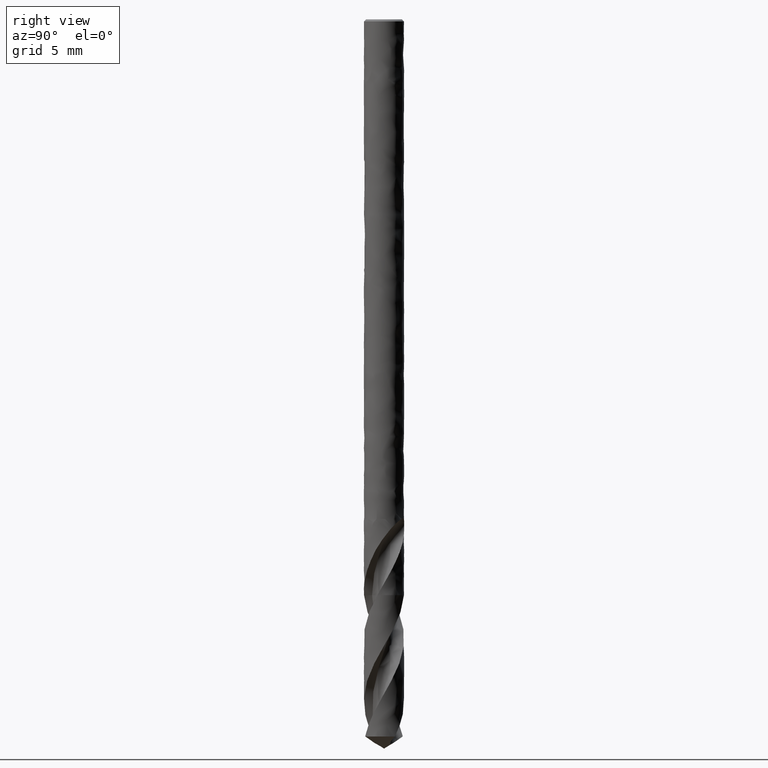
[diagram: clean part render]
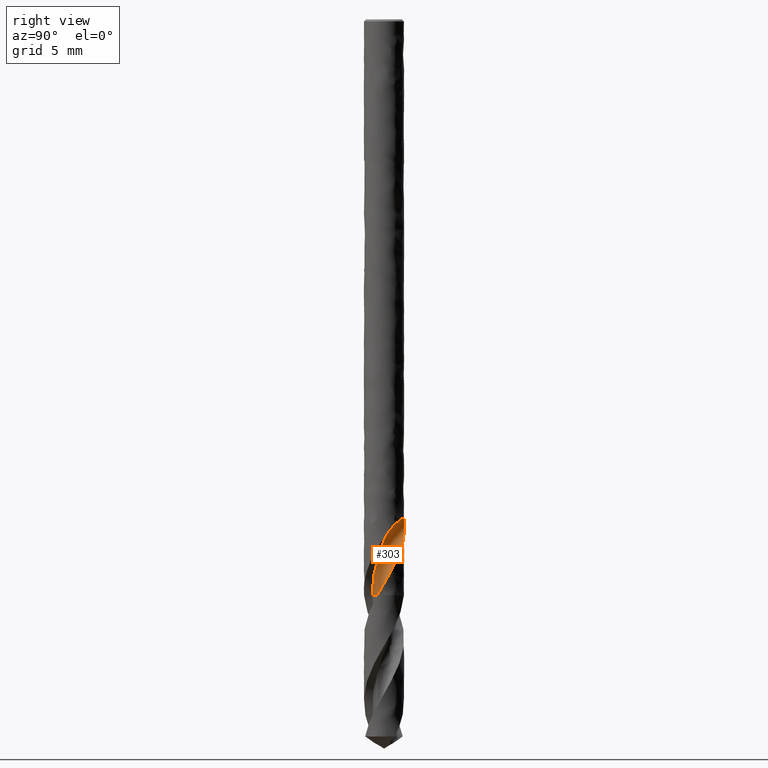
[diagram: same view with one face highlighted and labeled with its STEP entity id]
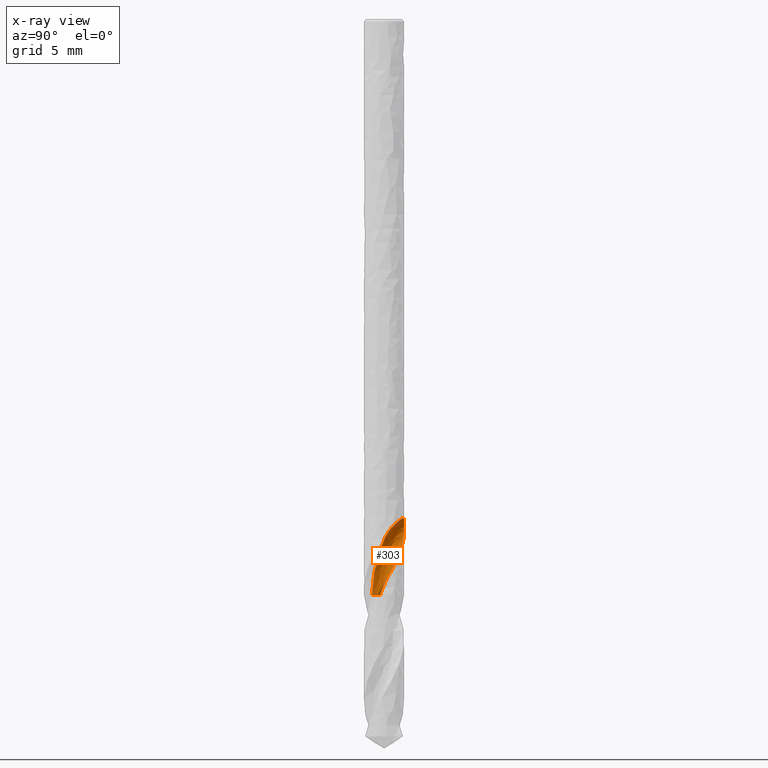
[diagram: x-ray of the same camera — body ghosted, the highlighted face saturated]
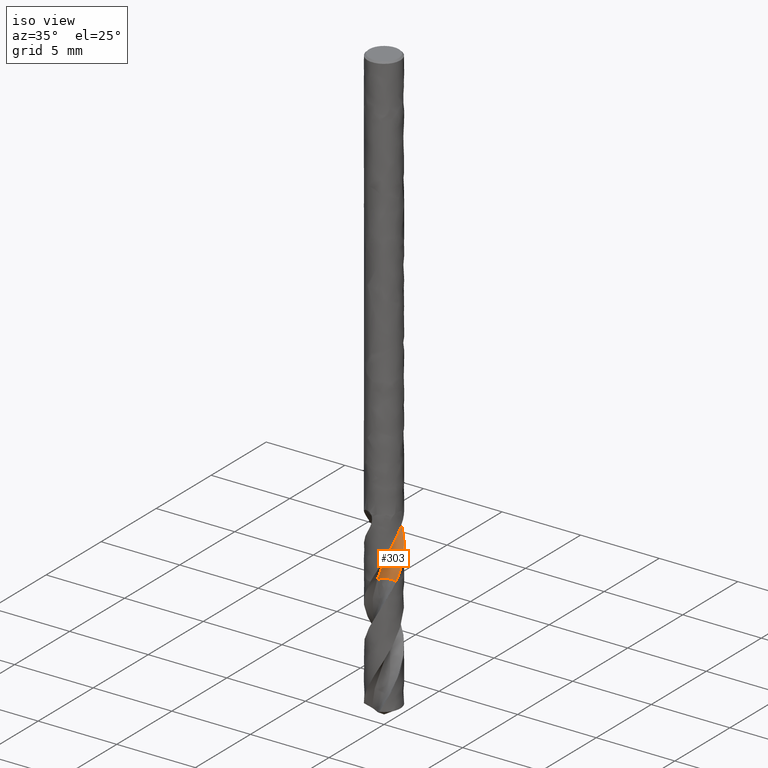
[diagram: same view with one face highlighted and labeled with its STEP entity id]
A machine part, right view. The second image highlights one B-rep face of the part: STEP entity #303.
The next image is the same camera in x-ray: the body ghosted, the highlighted face saturated — about 0% of this face is hidden behind the body in this view.
A second angle (iso view) of the same face is appended — the face is thin or edge-on in the first view.
In plain terms, the highlighted face is a freeform B-spline surface patch.
Its self-contained STEP definition (entity closure, byte-faithful):
#131 = VERTEX_POINT('', #132);
#132 = CARTESIAN_POINT('', (0.00812829736750632, -0.62197046309725, -30.));
#138 = EDGE_CURVE('', #131, #139, #141, .T.);
#139 = VERTEX_POINT('', #140);
#140 = CARTESIAN_POINT('', (1.00877154541879, 0.291341670815203, -26.6222620833544));
#141 = B_SPLINE_CURVE_WITH_KNOTS('', 3, (#142, #143, #144, #145, #146, #147, #148, #149, #150, #151, #152, #153, #154, #155, #156, #157, #158, #159, #160, #161, #162), .UNSPECIFIED., .F., .U., (4, 1, 1, 1, 1, 1, 1, 1, 1, 1, 1, 1, 1, 1, 1, 1, 1, 1, 4), (8.05, 8.16290322580645, 8.35725806451613, 8.55161290322581, 8.74596774193548, 8.94032258064516, 9.13467741935484, 9.32903225806452, 9.52338709677419, 9.71774193548387, 9.91209677419355, 10.1064516129032, 10.3008064516129, 10.4951612903226, 10.6895161290323, 10.8838709677419, 11.0782258064516, 11.2725806451613, 11.4277379166456), .UNSPECIFIED.);
#142 = CARTESIAN_POINT('', (0.00812829736750632, -0.62197046309725, -30.));
#143 = CARTESIAN_POINT('', (0.020875065677654, -0.622065054686382, -29.9623655913978));
#144 = CARTESIAN_POINT('', (0.0555943799361764, -0.621268053475307, -29.8599462365591));
#145 = CARTESIAN_POINT('', (0.112126050277125, -0.615270454144929, -29.6927419354839));
#146 = CARTESIAN_POINT('', (0.17690152979432, -0.601435017758764, -29.4983870967742));
#147 = CARTESIAN_POINT('', (0.240036038661191, -0.580855477938758, -29.3040322580645));
#148 = CARTESIAN_POINT('', (0.300819862148015, -0.553707964721038, -29.1096774193548));
#149 = CARTESIAN_POINT('', (0.358632258828611, -0.520299874706273, -28.9153225806452));
#150 = CARTESIAN_POINT('', (0.41262703865387, -0.480782048448571, -28.7209677419355));
#151 = CARTESIAN_POINT('', (0.462939638260712, -0.436211514525201, -28.5266129032258));
#152 = CARTESIAN_POINT('', (0.505887618218341, -0.384262338106694, -28.3322580645161));
#153 = CARTESIAN_POINT('', (0.539218741084692, -0.325882511425761, -28.1379032258065));
#154 = CARTESIAN_POINT('', (0.562175869022533, -0.262812607665207, -27.9435483870968));
#155 = CARTESIAN_POINT('', (0.573900631636519, -0.198034143079017, -27.7491935483871));
#156 = CARTESIAN_POINT('', (0.607234457413378, -0.141046432939312, -27.5548387096774));
#157 = CARTESIAN_POINT('', (0.658669150430675, -0.0817846011829336, -27.3604838709677));
#158 = CARTESIAN_POINT('', (0.729460243406816, -0.0136657452211108, -27.1661290322581));
#159 = CARTESIAN_POINT('', (0.817531811286789, 0.070833049384142, -26.9717741935484));
#160 = CARTESIAN_POINT('', (0.912793280784947, 0.171372761316634, -26.7904852105805));
#161 = CARTESIAN_POINT('', (0.978957922626561, 0.25196040898031, -26.6739811738491));
#162 = CARTESIAN_POINT('', (1.00877154541879, 0.291341670815203, -26.6222620833544));
#303 = ADVANCED_FACE('', (#304), #563, .T.);
#304 = FACE_OUTER_BOUND('', #305, .T.);
#305 = EDGE_LOOP('', (#306, #357, #368, #407, #418, #508, #516, #562));
#306 = ORIENTED_EDGE('', *, *, #307, .T.);
#307 = EDGE_CURVE('', #131, #308, #310, .T.);
#308 = VERTEX_POINT('', #309);
#309 = CARTESIAN_POINT('', (0.989390204592491, -0.338738397540219, -30.));
#310 = B_SPLINE_CURVE_WITH_KNOTS('', 3, (#311, #312, #313, #314, #315, #316, #317, #318, #319, #320, #321, #322, #323, #324, #325, #326, #327, #328, #329, #330, #331, #332, #333, #334, #335, #336, #337, #338, #339, #340, #341, #342, #343, #344, #345, #346, #347, #348, #349, #350, #351, #352, #353, #354, #355, #356), .UNSPECIFIED., .F., .U., (4, 3, 3, 3, 3, 3, 3, 3, 3, 3, 3, 3, 3, 3, 3, 4), (0., 0.0883401907301089, 0.176447770333646, 0.264331218393826, 0.351996399852826, 0.439446834063498, 0.52668385625376, 0.584820149875085, 0.610738380480792, 0.699044365433473, 0.787119138271106, 0.874970779840194, 0.962604802702614, 1.05002440330233, 1.13723060942003, 1.19592757691678), .UNSPECIFIED.);
#311 = CARTESIAN_POINT('', (0.00812829736750601, -0.621970463097248, -30.));
#312 = CARTESIAN_POINT('', (0.0176664654834315, -0.594111294570207, -30.));
#313 = CARTESIAN_POINT('', (0.0292123244834765, -0.566861669460074, -30.));
#314 = CARTESIAN_POINT('', (0.0425926385168949, -0.540630445348476, -30.));
#315 = CARTESIAN_POINT('', (0.0559377204561162, -0.514468291436314, -30.));
#316 = CARTESIAN_POINT('', (0.0711740399842842, -0.48918882880525, -30.));
#317 = CARTESIAN_POINT('', (0.0880741868528203, -0.465169367006323, -30.));
#318 = CARTESIAN_POINT('', (0.104931342459791, -0.441211006863665, -30.));
#319 = CARTESIAN_POINT('', (0.123527374527527, -0.418387474144312, -30.));
#320 = CARTESIAN_POINT('', (0.143586132381245, -0.397037697816471, -30.));
#321 = CARTESIAN_POINT('', (0.163595072470671, -0.375740945615674, -30.));
#322 = CARTESIAN_POINT('', (0.18515811865467, -0.355805578966728, -30.));
#323 = CARTESIAN_POINT('', (0.207956642869816, -0.337526174397218, -30.));
#324 = CARTESIAN_POINT('', (0.230699319138722, -0.319291547603412, -30.));
#325 = CARTESIAN_POINT('', (0.254783003573362, -0.30261525714233, -30.));
#326 = CARTESIAN_POINT('', (0.279853556688851, -0.287742520182874, -30.));
#327 = CARTESIAN_POINT('', (0.304862928205397, -0.272906078307282, -30.));
#328 = CARTESIAN_POINT('', (0.330976466204993, -0.259791901975455, -30.));
#329 = CARTESIAN_POINT('', (0.357812048160874, -0.248591892499135, -30.));
#330 = CARTESIAN_POINT('', (0.375695754331903, -0.241128008208622, -30.));
#331 = CARTESIAN_POINT('', (0.393947655706699, -0.234491724544059, -30.));
#332 = CARTESIAN_POINT('', (0.412448896149057, -0.228726256895383, -30.));
#333 = CARTESIAN_POINT('', (0.420697089943454, -0.226155905213842, -30.));
#334 = CARTESIAN_POINT('', (0.429000520278856, -0.22375653399112, -30.));
#335 = CARTESIAN_POINT('', (0.437348426126049, -0.221531252749761, -30.));
#336 = CARTESIAN_POINT('', (0.465790570165242, -0.213949498624474, -30.));
#337 = CARTESIAN_POINT('', (0.494843464924716, -0.208373360789007, -30.));
#338 = CARTESIAN_POINT('', (0.524071532533717, -0.204886439940146, -30.));
#339 = CARTESIAN_POINT('', (0.553223072109718, -0.201408648918044, -30.));
#340 = CARTESIAN_POINT('', (0.582693973668915, -0.199991782738159, -30.));
#341 = CARTESIAN_POINT('', (0.612044694472524, -0.200656973201971, -30.));
#342 = CARTESIAN_POINT('', (0.641321057280595, -0.201320478452331, -30.));
#343 = CARTESIAN_POINT('', (0.670622840914181, -0.204058738032071, -30.));
#344 = CARTESIAN_POINT('', (0.699515228256855, -0.208831118164447, -30.));
#345 = CARTESIAN_POINT('', (0.72833604580466, -0.213591676557655, -30.));
#346 = CARTESIAN_POINT('', (0.756891529550386, -0.2203997005449, -30.));
#347 = CARTESIAN_POINT('', (0.784760025909286, -0.22915466205441, -30.));
#348 = CARTESIAN_POINT('', (0.812560333842592, -0.237888201990477, -30.));
#349 = CARTESIAN_POINT('', (0.839813357230459, -0.248601944941349, -30.));
#350 = CARTESIAN_POINT('', (0.86611863442296, -0.261138460917775, -30.));
#351 = CARTESIAN_POINT('', (0.89235969945981, -0.273644374794506, -30.));
#352 = CARTESIAN_POINT('', (0.91778571903291, -0.288025159349682, -30.));
#353 = CARTESIAN_POINT('', (0.942024893006842, -0.304070526943534, -30.));
#354 = CARTESIAN_POINT('', (0.958339855785701, -0.314870382390272, -30.));
#355 = CARTESIAN_POINT('', (0.974163304934627, -0.32645196539108, -30.));
#356 = CARTESIAN_POINT('', (0.98939020459249, -0.338738397540218, -30.));
#357 = ORIENTED_EDGE('', *, *, #358, .T.);
#358 = EDGE_CURVE('', #308, #359, #361, .T.);
#359 = VERTEX_POINT('', #360);
#360 = CARTESIAN_POINT('', (1.03944976676884, -0.148472833758227, -29.6547034049127));
#361 = (
   BOUNDED_CURVE ()
   B_SPLINE_CURVE (3, (#362, #363, #364, #365, #366, #367), .UNSPECIFIED., .F., .U.)
   B_SPLINE_CURVE_WITH_KNOTS ((4, 1, 1, 4), (8.05, 8.16290322580645, 8.35725806451613, 8.39529659508728), .UNSPECIFIED.)
   CURVE ()
   GEOMETRIC_REPRESENTATION_ITEM ()
   RATIONAL_B_SPLINE_CURVE ((1., 1., 1., 1., 1., 1.))
   REPRESENTATION_ITEM ('')
);
#362 = CARTESIAN_POINT('', (0.989390204592491, -0.338738397540219, -30.));
#363 = CARTESIAN_POINT('', (0.996745896425682, -0.318609312004488, -29.9623655913978));
#364 = CARTESIAN_POINT('', (1.01511126470241, -0.263186028711659, -29.8599462365591));
#365 = CARTESIAN_POINT('', (1.03057337781275, -0.199236359863171, -29.74484737153));
#366 = CARTESIAN_POINT('', (1.03826397828878, -0.155625040128897, -29.6673829151031));
#367 = CARTESIAN_POINT('', (1.03944976676884, -0.148472833758226, -29.6547034049127));
#368 = ORIENTED_EDGE('', *, *, #369, .F.);
#369 = EDGE_CURVE('', #370, #359, #372, .T.);
#370 = VERTEX_POINT('', #371);
#371 = CARTESIAN_POINT('', (0.782208918882466, 0.700463565948099, -28.0527103026529));
#372 = B_SPLINE_CURVE_WITH_KNOTS('', 3, (#373, #374, #375, #376, #377, #378, #379, #380, #381, #382, #383, #384, #385, #386, #387, #388, #389, #390, #391, #392, #393, #394, #395, #396, #397, #398, #399, #400, #401, #402, #403, #404, #405, #406), .UNSPECIFIED., .F., .U., (4, 3, 3, 3, 3, 3, 3, 3, 3, 3, 3, 4), (0., 0.13133972629884, 0.328235195636092, 0.525092876415898, 0.656359922986875, 0.787629033900919, 0.984397754771338, 1.18111910121638, 1.37777896615772, 1.50895134112161, 1.54785696361958, 1.84516146076166), .UNSPECIFIED.);
#373 = CARTESIAN_POINT('', (0.782208918882464, 0.700463565948101, -28.0527103026529));
#374 = CARTESIAN_POINT('', (0.796151295959081, 0.684894088490711, -28.0911795358756));
#375 = CARTESIAN_POINT('', (0.809726844210736, 0.668797197088639, -28.1295737315647));
#376 = CARTESIAN_POINT('', (0.822863472641311, 0.65222366209222, -28.1679068418322));
#377 = CARTESIAN_POINT('', (0.842557000968466, 0.627377760218841, -28.2253731998792));
#378 = CARTESIAN_POINT('', (0.86128187801198, 0.601440760668405, -28.2827196239858));
#379 = CARTESIAN_POINT('', (0.878904535978424, 0.574479605065797, -28.3399041867613));
#380 = CARTESIAN_POINT('', (0.896523811770431, 0.547523623900066, -28.3970777745655));
#381 = CARTESIAN_POINT('', (0.913047653829156, 0.519527639250661, -28.454119112134));
#382 = CARTESIAN_POINT('', (0.928297923191228, 0.490676029370557, -28.511047987357));
#383 = CARTESIAN_POINT('', (0.938466984467582, 0.471437432213581, -28.5490088395094));
#384 = CARTESIAN_POINT('', (0.94807410642492, 0.451812111886709, -28.5869304126839));
#385 = CARTESIAN_POINT('', (0.957073077257195, 0.431869337635236, -28.6248232088734));
#386 = CARTESIAN_POINT('', (0.966072189609855, 0.411926249757999, -28.6627166009758));
#387 = CARTESIAN_POINT('', (0.974463808610004, 0.391662352802299, -28.7005915881401));
#388 = CARTESIAN_POINT('', (0.982201696754211, 0.371187051084958, -28.7384796739837));
#389 = CARTESIAN_POINT('', (0.993800574371132, 0.340495147252417, -28.7952728535502));
#390 = CARTESIAN_POINT('', (1.00394465026711, 0.309303256692087, -28.8521136009947));
#391 = CARTESIAN_POINT('', (1.01260972579442, 0.27770765784638, -28.9089346073902));
#392 = CARTESIAN_POINT('', (1.02127271510105, 0.246119666019376, -28.9657419334481));
#393 = CARTESIAN_POINT('', (1.028462127745, 0.214101369328365, -29.0225553805927));
#394 = CARTESIAN_POINT('', (1.03413656603345, 0.18182838830161, -29.0793548202994));
#395 = CARTESIAN_POINT('', (1.03980923088447, 0.149565493579359, -29.1361365084249));
#396 = CARTESIAN_POINT('', (1.04397076296025, 0.117035484948745, -29.1929380221775));
#397 = CARTESIAN_POINT('', (1.04660274372253, 0.0843960711892721, -29.2497268851302));
#398 = CARTESIAN_POINT('', (1.04835827817055, 0.0626255415413633, -29.2876051274814));
#399 = CARTESIAN_POINT('', (1.0494343310187, 0.0407988557297479, -29.3254887102008));
#400 = CARTESIAN_POINT('', (1.04982875080143, 0.018962963657779, -29.3633679572422));
#401 = CARTESIAN_POINT('', (1.04994573539652, 0.0124864553678882, -29.3746029119063));
#402 = CARTESIAN_POINT('', (1.05000278575216, 0.00600887147352004, -29.38583803047));
#403 = CARTESIAN_POINT('', (1.04999989547043, -0.000468521159221404, -29.3970730839926));
#404 = CARTESIAN_POINT('', (1.04997780884905, -0.0499667128298426, -29.4829278197208));
#405 = CARTESIAN_POINT('', (1.04644678980804, -0.0994870780339567, -29.5688398822844));
#406 = CARTESIAN_POINT('', (1.03944976676884, -0.148472833758224, -29.6547034049127));
#407 = ORIENTED_EDGE('', *, *, #408, .T.);
#408 = EDGE_CURVE('', #370, #409, #411, .T.);
#409 = VERTEX_POINT('', #410);
#410 = CARTESIAN_POINT('', (0.57196852286132, 0.880540747981514, -27.5669624606441));
#411 = (
   BOUNDED_CURVE ()
   B_SPLINE_CURVE (3, (#412, #413, #414, #415, #416, #417), .UNSPECIFIED., .F., .U.)
   B_SPLINE_CURVE_WITH_KNOTS ((4, 1, 1, 4), (9.9972896973471, 10.1064516129032, 10.3008064516129, 10.4830375393559), .UNSPECIFIED.)
   CURVE ()
   GEOMETRIC_REPRESENTATION_ITEM ()
   RATIONAL_B_SPLINE_CURVE ((1., 1., 1., 1., 1., 1.))
   REPRESENTATION_ITEM ('')
);
#412 = CARTESIAN_POINT('', (0.782208918882465, 0.7004635659481, -28.0527103026529));
#413 = CARTESIAN_POINT('', (0.766172105137895, 0.714048366358581, -28.0163229974675));
#414 = CARTESIAN_POINT('', (0.719911399877646, 0.749611184330022, -27.9151507460456));
#415 = CARTESIAN_POINT('', (0.639985453764513, 0.795585097552899, -27.7532347987093));
#416 = CARTESIAN_POINT('', (0.593383731204515, 0.849880559154898, -27.6277061565584));
#417 = CARTESIAN_POINT('', (0.57196852286132, 0.880540747981514, -27.5669624606441));
#418 = ORIENTED_EDGE('', *, *, #419, .F.);
#419 = EDGE_CURVE('', #420, #409, #422, .T.);
#420 = VERTEX_POINT('', #421);
#421 = CARTESIAN_POINT('', (0.345936761403255, 0.991376697885235, -26.));
#422 = B_SPLINE_CURVE_WITH_KNOTS('', 3, (#423, #424, #425, #426, #427, #428, #429, #430, #431, #432, #433, #434, #435, #436, #437, #438, #439, #440, #441, #442, #443, #444, #445, #446, #447, #448, #449, #450, #451, #452, #453, #454, #455, #456, #457, #458, #459, #460, #461, #462, #463, #464, #465, #466, #467, #468, #469, #470, #471, #472, #473, #474, #475, #476, #477, #478, #479, #480, #481, #482, #483, #484, #485, #486, #487, #488, #489, #490, #491, #492, #493, #494, #495, #496, #497, #498, #499, #500, #501, #502, #503, #504, #505, #506, #507), .UNSPECIFIED., .F., .U., (4, 3, 3, 3, 3, 3, 3, 3, 3, 3, 3, 3, 3, 3, 3, 3, 3, 3, 3, 3, 3, 3, 3, 3, 3, 3, 3, 3, 4), (0., 0.058280017900237, 0.116353961126958, 0.154999582403436, 0.193576873552, 0.232105380273283, 0.270616297883752, 0.309145192496733, 0.347721883823756, 0.386363860599954, 0.425076050624482, 0.463854616084391, 0.50270718258308, 0.561048444779216, 0.648800359965174, 0.736750594708691, 0.824810468198701, 0.912922825566689, 1.00104985839076, 1.08916643914648, 1.17725707545499, 1.30967583584698, 1.39765663463878, 1.48558498333805, 1.57346354442238, 1.66129336989001, 1.74907310687979, 1.83680332013748, 1.91224977555523), .UNSPECIFIED.);
#423 = CARTESIAN_POINT('', (0.345936761403456, 0.991376697885165, -26.));
#424 = CARTESIAN_POINT('', (0.327594721070438, 0.997777076312327, -26.0000179448276));
#425 = CARTESIAN_POINT('', (0.309017574330095, 1.00368253512883, -26.0012150408971));
#426 = CARTESIAN_POINT('', (0.290520835384896, 1.00900824783907, -26.0038424049995));
#427 = CARTESIAN_POINT('', (0.27208949980738, 1.01431512914624, -26.006460478899));
#428 = CARTESIAN_POINT('', (0.253619913620109, 1.01907754478323, -26.0105237730701));
#429 = CARTESIAN_POINT('', (0.235595493062835, 1.02322762064385, -26.0162359149843));
#430 = CARTESIAN_POINT('', (0.223601044401668, 1.02598931118986, -26.0200370908789));
#431 = CARTESIAN_POINT('', (0.211752327822812, 1.02849340198025, -26.0245842280172));
#432 = CARTESIAN_POINT('', (0.20023200731862, 1.03073136327811, -26.0298961406905));
#433 = CARTESIAN_POINT('', (0.188732056133063, 1.03296536758999, -26.0351986612603));
#434 = CARTESIAN_POINT('', (0.177509247826395, 1.03494397739456, -26.0412885445473));
#435 = CARTESIAN_POINT('', (0.166758493019503, 1.03667333572629, -26.0481286445298));
#436 = CARTESIAN_POINT('', (0.156021333501457, 1.03840050713008, -26.0549600945956));
#437 = CARTESIAN_POINT('', (0.145703688696237, 1.03988776102357, -26.062574030664));
#438 = CARTESIAN_POINT('', (0.135982151104027, 1.04115745907193, -26.0708696921375));
#439 = CARTESIAN_POINT('', (0.126265051607569, 1.04242657747521, -26.0791615664591));
#440 = CARTESIAN_POINT('', (0.117095392096233, 1.04348531130601, -26.0881753927767));
#441 = CARTESIAN_POINT('', (0.108601534409054, 1.04436856842975, -26.0977598647159));
#442 = CARTESIAN_POINT('', (0.100103711765689, 1.04525223786035, -26.1073488107131));
#443 = CARTESIAN_POINT('', (0.092241423791524, 1.04596516560231, -26.1175528518861));
#444 = CARTESIAN_POINT('', (0.0850811815697595, 1.04654727200576, -26.1281986881679));
#445 = CARTESIAN_POINT('', (0.0779120567664057, 1.04713010053669, -26.1388577310573));
#446 = CARTESIAN_POINT('', (0.0714153762653441, 1.04758473108538, -26.1500026853389));
#447 = CARTESIAN_POINT('', (0.0656022580362993, 1.04794863602208, -26.1614668235321));
#448 = CARTESIAN_POINT('', (0.0597793019486503, 1.04831315681505, -26.1729503631147));
#449 = CARTESIAN_POINT('', (0.0546205115279517, 1.04858814091768, -26.1847930834416));
#450 = CARTESIAN_POINT('', (0.0500991282462118, 1.04880411772122, -26.1968521804887));
#451 = CARTESIAN_POINT('', (0.0455695295201897, 1.04902048695894, -26.2089331891575));
#452 = CARTESIAN_POINT('', (0.0416659382136602, 1.04917825745469, -26.2212644560544));
#453 = CARTESIAN_POINT('', (0.0383415484905624, 1.04929973108705, -26.2337323559516));
#454 = CARTESIAN_POINT('', (0.0350114588105492, 1.04942141299657, -26.2462216331536));
#455 = CARTESIAN_POINT('', (0.0322546052473437, 1.04950686109828, -26.2588750188827));
#456 = CARTESIAN_POINT('', (0.0300169824161123, 1.04957085552498, -26.2716058985684));
#457 = CARTESIAN_POINT('', (0.0277750895348687, 1.04963497207208, -26.2843610725596));
#458 = CARTESIAN_POINT('', (0.0260502324557016, 1.04967755908833, -26.2972156013516));
#459 = CARTESIAN_POINT('', (0.0247885763187718, 1.04970735278212, -26.3101048214327));
#460 = CARTESIAN_POINT('', (0.0228940653991787, 1.04975209118316, -26.3294593566931));
#461 = CARTESIAN_POINT('', (0.0220385742496895, 1.04976868956799, -26.3489350071027));
#462 = CARTESIAN_POINT('', (0.0220573385174678, 1.04976829530022, -26.3683820854447));
#463 = CARTESIAN_POINT('', (0.022085562117243, 1.04976770227651, -26.3976327102177));
#464 = CARTESIAN_POINT('', (0.0240861744181192, 1.04972962777212, -26.4269206679051));
#465 = CARTESIAN_POINT('', (0.0276113157866286, 1.04963689685554, -26.4559579650563));
#466 = CARTESIAN_POINT('', (0.0311444239838398, 1.04954395636685, -26.4850608865748));
#467 = CARTESIAN_POINT('', (0.0362211252901049, 1.04939395543933, -26.5140026442716));
#468 = CARTESIAN_POINT('', (0.0425122812491141, 1.04913903079764, -26.5426352812879));
#469 = CARTESIAN_POINT('', (0.0488112797619874, 1.04888378836693, -26.5713036117443));
#470 = CARTESIAN_POINT('', (0.0563413950285635, 1.04852198214361, -26.5997191739064));
#471 = CARTESIAN_POINT('', (0.0648515362194232, 1.04799536175023, -26.6278068201231));
#472 = CARTESIAN_POINT('', (0.0733667494731209, 1.04746842748993, -26.6559112066386));
#473 = CARTESIAN_POINT('', (0.0828757147275387, 1.04677536417874, -26.6837252073888));
#474 = CARTESIAN_POINT('', (0.0931812517185266, 1.04585718639218, -26.7112133123573));
#475 = CARTESIAN_POINT('', (0.103488505136814, 1.04493885567955, -26.7387059955768));
#476 = CARTESIAN_POINT('', (0.114603152760071, 1.04379421417409, -26.7658989053057));
#477 = CARTESIAN_POINT('', (0.126359559840542, 1.04236906210656, -26.7927817301028));
#478 = CARTESIAN_POINT('', (0.13811457258415, 1.04094407906533, -26.8196613665353));
#479 = CARTESIAN_POINT('', (0.150520009056377, 1.03923754696216, -26.8462498771185));
#480 = CARTESIAN_POINT('', (0.163435516984505, 1.037202406374, -26.8725514666856));
#481 = CARTESIAN_POINT('', (0.176347222158253, 1.0351678649988, -26.8988453121913));
#482 = CARTESIAN_POINT('', (0.189776030841893, 1.03280369587777, -26.9248663189453));
#483 = CARTESIAN_POINT('', (0.203594722145591, 1.03007241935437, -26.9506306683411));
#484 = CARTESIAN_POINT('', (0.224367122588547, 1.02596673608685, -26.9893599062291));
#485 = CARTESIAN_POINT('', (0.246032665223281, 1.02102583203937, -27.0275377373308));
#486 = CARTESIAN_POINT('', (0.2682027966644, 1.01516858691618, -27.0652535307612));
#487 = CARTESIAN_POINT('', (0.282932929069617, 1.01127695477032, -27.0903124093012));
#488 = CARTESIAN_POINT('', (0.297892643825447, 1.00698045695022, -27.1151775883068));
#489 = CARTESIAN_POINT('', (0.312975274421461, 1.00227066085005, -27.1398838844702));
#490 = CARTESIAN_POINT('', (0.328048913449074, 0.997563672512993, -27.1645754518799));
#491 = CARTESIAN_POINT('', (0.343248011630503, 0.992443045027865, -27.189115172068));
#492 = CARTESIAN_POINT('', (0.358473363811779, 0.986912786135371, -27.2135415660184));
#493 = CARTESIAN_POINT('', (0.37369009495123, 0.981385658637977, -27.2379541290269));
#494 = CARTESIAN_POINT('', (0.388936907334945, 0.975447933139076, -27.2622582478386));
#495 = CARTESIAN_POINT('', (0.404119336229474, 0.969116898049753, -27.2864962990214));
#496 = CARTESIAN_POINT('', (0.419293345265666, 0.962789374020416, -27.3107209082868));
#497 = CARTESIAN_POINT('', (0.43440598079618, 0.956067653600918, -27.3348841036306));
#498 = CARTESIAN_POINT('', (0.449364111990249, 0.948984665237374, -27.3590337494179));
#499 = CARTESIAN_POINT('', (0.464313712710542, 0.941905716231804, -27.3831696229019));
#500 = CARTESIAN_POINT('', (0.479110837088395, 0.934465064176768, -27.4072970338113));
#501 = CARTESIAN_POINT('', (0.49367073945409, 0.926708800544624, -27.4314629620394));
#502 = CARTESIAN_POINT('', (0.508222427387517, 0.918956912855441, -27.45561525629));
#503 = CARTESIAN_POINT('', (0.522539803286144, 0.910888433501865, -27.4798105563669));
#504 = CARTESIAN_POINT('', (0.536548198341111, 0.902560818370104, -27.5040920801294));
#505 = CARTESIAN_POINT('', (0.548595174106285, 0.895399214397603, -27.5249737676575));
#506 = CARTESIAN_POINT('', (0.560415602937531, 0.888045121355139, -27.5459225582662));
#507 = CARTESIAN_POINT('', (0.571968522861319, 0.880540747981514, -27.5669624606441));
#508 = ORIENTED_EDGE('', *, *, #509, .T.);
#509 = EDGE_CURVE('', #420, #510, #512, .T.);
#510 = VERTEX_POINT('', #511);
#511 = CARTESIAN_POINT('', (0.346776762741686, 0.99108318360388, -26.));
#512 = LINE('', #513, #514);
#513 = CARTESIAN_POINT('', (0.345936761403255, 0.991376697885235, -26.));
#514 = VECTOR('', #515, 0.000889804968475693);
#515 = DIRECTION('', (0.000840001338430318, -0.000293514281354934, 0.));
#516 = ORIENTED_EDGE('', *, *, #517, .T.);
#517 = EDGE_CURVE('', #510, #139, #518, .T.);
#518 = B_SPLINE_CURVE_WITH_KNOTS('', 3, (#519, #520, #521, #522, #523, #524, #525, #526, #527, #528, #529, #530, #531, #532, #533, #534, #535, #536, #537, #538, #539, #540, #541, #542, #543, #544, #545, #546, #547, #548, #549, #550, #551, #552, #553, #554, #555, #556, #557, #558, #559, #560, #561), .UNSPECIFIED., .F., .U., (4, 3, 3, 3, 3, 3, 3, 3, 3, 3, 3, 3, 3, 3, 4), (0., 0.058690605354289, 0.117150031989733, 0.175445623926169, 0.233626186421192, 0.320580568857298, 0.407351418844921, 0.494013046061636, 0.580611025116492, 0.667174810702068, 0.796253044627724, 0.925342715148044, 1.0545058011874, 1.18379303589464, 1.20845821865217), .UNSPECIFIED.);
#519 = CARTESIAN_POINT('', (0.34677676274619, 0.991083183602306, -26.));
#520 = CARTESIAN_POINT('', (0.365242555520324, 0.984622063137643, -26.0000180521705));
#521 = CARTESIAN_POINT('', (0.383554587330845, 0.977631795488324, -26.0012246219136));
#522 = CARTESIAN_POINT('', (0.401520302253825, 0.970196602178137, -26.0033886214661));
#523 = CARTESIAN_POINT('', (0.419415251320261, 0.96279069564142, -26.0055440971562));
#524 = CARTESIAN_POINT('', (0.437027316517767, 0.954919773912245, -26.0086557245886));
#525 = CARTESIAN_POINT('', (0.454243711769345, 0.946658676777439, -26.0125380869934));
#526 = CARTESIAN_POINT('', (0.471411857438325, 0.938420731672006, -26.0164095689344));
#527 = CARTESIAN_POINT('', (0.488229282770511, 0.929775186266026, -26.0210569208791));
#528 = CARTESIAN_POINT('', (0.504628996587628, 0.920787475915571, -26.0263359157706));
#529 = CARTESIAN_POINT('', (0.520996350326442, 0.911817500204509, -26.0316044940968));
#530 = CARTESIAN_POINT('', (0.536978707893686, 0.9024902017251, -26.0375123020149));
#531 = CARTESIAN_POINT('', (0.552535549648349, 0.89286307257877, -26.0439474950399));
#532 = CARTESIAN_POINT('', (0.575786194011725, 0.878474743665253, -26.0535652816571));
#533 = CARTESIAN_POINT('', (0.598146197440729, 0.863379041058696, -26.0643838965269));
#534 = CARTESIAN_POINT('', (0.619541497015112, 0.847743082234398, -26.0761259678696));
#535 = CARTESIAN_POINT('', (0.640891638063762, 0.832140125838811, -26.0878432555149));
#536 = CARTESIAN_POINT('', (0.661336219772522, 0.815960077600012, -26.1005111459917));
#537 = CARTESIAN_POINT('', (0.680841164518354, 0.799346801267945, -26.1139324641392));
#538 = CARTESIAN_POINT('', (0.700321557423195, 0.78275443689047, -26.1273368882082));
#539 = CARTESIAN_POINT('', (0.718903973650727, 0.765697051564873, -26.1415204255628));
#540 = CARTESIAN_POINT('', (0.73657611136426, 0.748301832262563, -26.1563384126744));
#541 = CARTESIAN_POINT('', (0.754235269872143, 0.730919388784679, -26.1711455167959));
#542 = CARTESIAN_POINT('', (0.77101456022482, 0.713171318047233, -26.1866108516262));
#543 = CARTESIAN_POINT('', (0.786914985646086, 0.695172500438289, -26.2026253634525));
#544 = CARTESIAN_POINT('', (0.802809132737141, 0.677180789715946, -26.2186335519012));
#545 = CARTESIAN_POINT('', (0.817847135555027, 0.658913792946213, -26.235212866773));
#546 = CARTESIAN_POINT('', (0.832039109927166, 0.640477103065842, -26.2522793249162));
#547 = CARTESIAN_POINT('', (0.853201250370559, 0.612985521533278, -26.2777277068416));
#548 = CARTESIAN_POINT('', (0.872525600066766, 0.585058356882742, -26.3043120437246));
#549 = CARTESIAN_POINT('', (0.890073652161494, 0.557017857638247, -26.3318263973556));
#550 = CARTESIAN_POINT('', (0.907623259049412, 0.528974873948355, -26.3593431888144));
#551 = CARTESIAN_POINT('', (0.923434762469145, 0.500757624747996, -26.3878527460695));
#552 = CARTESIAN_POINT('', (0.937598250035972, 0.472662164266915, -26.4172059770439));
#553 = CARTESIAN_POINT('', (0.951769792622127, 0.444550725413549, -26.4465759017064));
#554 = CARTESIAN_POINT('', (0.964319165966345, 0.416507451224235, -26.4768438618649));
#555 = CARTESIAN_POINT('', (0.975365197985111, 0.38879651562156, -26.5078884638598));
#556 = CARTESIAN_POINT('', (0.986421847202665, 0.361058944887699, -26.5389629052314));
#557 = CARTESIAN_POINT('', (0.995990191953563, 0.333610145474942, -26.5708665357291));
#558 = CARTESIAN_POINT('', (1.00421125099189, 0.306691642177134, -26.603501663999));
#559 = CARTESIAN_POINT('', (1.00577964963619, 0.301556179229821, -26.6097277342287));
#560 = CARTESIAN_POINT('', (1.00729938667097, 0.296439025584193, -26.6159814362956));
#561 = CARTESIAN_POINT('', (1.00877154541879, 0.291341670815202, -26.6222620833544));
#562 = ORIENTED_EDGE('', *, *, #138, .F.);
#563 = (
   BOUNDED_SURFACE ()
   B_SPLINE_SURFACE (3, 2, ((#564, #565, #566, #567, #568), (#569, #570, #571, #572, #573), (#574, #575, #576, #577, #578), (#579, #580, #581, #582, #583), (#584, #585, #586, #587, #588), (#589, #590, #591, #592, #593), (#594, #595, #596, #597, #598), (#599, #600, #601, #602, #603), (#604, #605, #606, #607, #608), (#609, #610, #611, #612, #613), (#614, #615, #616, #617, #618), (#619, #620, #621, #622, #623), (#624, #625, #626, #627, #628), (#629, #630, #631, #632, #633), (#634, #635, #636, #637, #638), (#639, #640, #641, #642, #643), (#644, #645, #646, #647, #648), (#649, #650, #651, #652, #653), (#654, #655, #656, #657, #658), (#659, #660, #661, #662, #663), (#664, #665, #666, #667, #668), (#669, #670, #671, #672, #673), (#674, #675, #676, #677, #678)), .UNSPECIFIED., .F., .F., .U.)
   B_SPLINE_SURFACE_WITH_KNOTS ((4, 1, 1, 1, 1, 1, 1, 1, 1, 1, 1, 1, 1, 1, 1, 1, 1, 1, 1, 1, 4), (3, 2, 3), (8.04999999999991, 8.16290322580645, 8.35725806451613, 8.55161290322581, 8.74596774193548, 8.94032258064516, 9.13467741935484, 9.32903225806452, 9.52338709677419, 9.71774193548387, 9.91209677419355, 10.1064516129032, 10.3008064516129, 10.4951612903226, 10.6895161290323, 10.8838709677419, 11.0782258064516, 11.2725806451613, 11.466935483871, 11.6612903225806, 12.05), (0., 0.5, 1.), .UNSPECIFIED.)
   GEOMETRIC_REPRESENTATION_ITEM ()
   RATIONAL_B_SPLINE_SURFACE (((1., 0.887010833178222, 1., 0.887010833178222, 1.), (1., 0.887010833178222, 1., 0.887010833178222, 1.), (1., 0.887010833178222, 1., 0.887010833178222, 1.), (1., 0.887010833178222, 1., 0.887010833178222, 1.), (1., 0.887010833178222, 1., 0.887010833178222, 1.), (1., 0.887010833178222, 1., 0.887010833178222, 1.), (1., 0.887010833178221, 1., 0.887010833178221, 1.), (1., 0.887010833178222, 1., 0.887010833178222, 1.), (1., 0.887010833178222, 1., 0.887010833178222, 1.), (1., 0.887010833178221, 1., 0.887010833178221, 1.), (1., 0.887010833178222, 1., 0.887010833178222, 1.), (1., 0.887010833178221, 1., 0.887010833178221, 1.), (1., 0.887010833178222, 1., 0.887010833178222, 1.), (1., 0.887010833178222, 1., 0.887010833178222, 1.), (1., 0.887010833178221, 1., 0.887010833178221, 1.), (1., 0.887010833178222, 1., 0.887010833178222, 1.), (1., 0.887010833178222, 1., 0.887010833178222, 1.), (1., 0.887010833178222, 1., 0.887010833178222, 1.), (1., 0.887010833178222, 1., 0.887010833178222, 1.), (1., 0.887010833178222, 1., 0.887010833178222, 1.), (1., 0.887010833178222, 1., 0.887010833178222, 1.), (1., 0.887010833178222, 1., 0.887010833178222, 1.), (1., 0.887010833178222, 1., 0.887010833178222, 1.)))
   REPRESENTATION_ITEM ('')
   SURFACE ()
);
#564 = CARTESIAN_POINT('', (0.989390204592474, -0.338738397540267, -30.0000000000001));
#565 = CARTESIAN_POINT('', (0.73683214162812, -0.134951837304602, -30.0000000000001));
#566 = CARTESIAN_POINT('', (0.425038610485636, -0.224948121887309, -30.0000000000001));
#567 = CARTESIAN_POINT('', (0.113245079343152, -0.314944406470016, -30.0000000000001));
#568 = CARTESIAN_POINT('', (0.00812829736747551, -0.62197046309725, -30.0000000000001));
#569 = CARTESIAN_POINT('', (0.996745896425671, -0.31860931200452, -29.9623655913979));
#570 = CARTESIAN_POINT('', (0.739906480577888, -0.119911775600885, -29.9623655913979));
#571 = CARTESIAN_POINT('', (0.429825950581209, -0.216334083304457, -29.9623655913979));
#572 = CARTESIAN_POINT('', (0.119745420584529, -0.312756391008029, -29.9623655913979));
#573 = CARTESIAN_POINT('', (0.0208750656776334, -0.622065054686382, -29.9623655913979));
#574 = CARTESIAN_POINT('', (1.01511126470241, -0.263186028711676, -29.8599462365592));
#575 = CARTESIAN_POINT('', (0.747034074900445, -0.0787009307563661, -29.8599462365592));
#576 = CARTESIAN_POINT('', (0.442149970575886, -0.192480603764811, -29.8599462365592));
#577 = CARTESIAN_POINT('', (0.137265866251327, -0.306260276773256, -29.8599462365592));
#578 = CARTESIAN_POINT('', (0.055594379936166, -0.621268053475308, -29.8599462365592));
#579 = CARTESIAN_POINT('', (1.0375731005781, -0.170286244851032, -29.6927419354839));
#580 = CARTESIAN_POINT('', (0.753086015877339, -0.0105071027262201, -29.6927419354839));
#581 = CARTESIAN_POINT('', (0.459027516740499, -0.151899728789485, -29.6927419354839));
#582 = CARTESIAN_POINT('', (0.164969017603658, -0.29329235485275, -29.6927419354839));
#583 = CARTESIAN_POINT('', (0.112126050277125, -0.615270454144929, -29.6927419354839));
#584 = CARTESIAN_POINT('', (1.052285256202, -0.059902813835514, -29.4983870967742));
#585 = CARTESIAN_POINT('', (0.751792484361303, 0.0692495577744365, -29.4983870967742));
#586 = CARTESIAN_POINT('', (0.473641481910605, -0.102820953518617, -29.4983870967742));
#587 = CARTESIAN_POINT('', (0.195490479459906, -0.27489146481167, -29.4983870967742));
#588 = CARTESIAN_POINT('', (0.17690152979432, -0.601435017758764, -29.4983870967742));
#589 = CARTESIAN_POINT('', (1.0553914918869, 0.0516949238326023, -29.3040322580645));
#590 = CARTESIAN_POINT('', (0.74214848469195, 0.148634632010692, -29.3040322580645));
#591 = CARTESIAN_POINT('', (0.483071316786326, -0.0523566853345826, -29.3040322580645));
#592 = CARTESIAN_POINT('', (0.223994148880701, -0.253348002679858, -29.3040322580645));
#593 = CARTESIAN_POINT('', (0.240036038661191, -0.580855477938757, -29.3040322580645));
#594 = CARTESIAN_POINT('', (1.04676947129113, 0.163283674658177, -29.1096774193548));
#595 = CARTESIAN_POINT('', (0.724197188752551, 0.22676855954907, -29.1096774193548));
#596 = CARTESIAN_POINT('', (0.487173555228624, -0.0010537510855001, -29.1096774193548));
#597 = CARTESIAN_POINT('', (0.250149921704696, -0.22887606172007, -29.1096774193548));
#598 = CARTESIAN_POINT('', (0.300819862148015, -0.553707964721038, -29.1096774193548));
#599 = CARTESIAN_POINT('', (1.02655499642733, 0.273706814009667, -28.9153225806452));
#600 = CARTESIAN_POINT('', (0.698157556698532, 0.302846405471512, -28.9153225806452));
#601 = CARTESIAN_POINT('', (0.485926767596364, 0.0505527544058044, -28.9153225806452));
#602 = CARTESIAN_POINT('', (0.273695978494195, -0.201740896659903, -28.9153225806452));
#603 = CARTESIAN_POINT('', (0.358632258828611, -0.520299874706273, -28.9153225806452));
#604 = CARTESIAN_POINT('', (0.994508537580539, 0.38153925706837, -28.7209677419355));
#605 = CARTESIAN_POINT('', (0.664011158249841, 0.375833222835324, -28.7209677419355));
#606 = CARTESIAN_POINT('', (0.479119758796762, 0.101832772143342, -28.7209677419355));
#607 = CARTESIAN_POINT('', (0.294228359343683, -0.172167678548641, -28.7209677419355));
#608 = CARTESIAN_POINT('', (0.41262703865387, -0.480782048448571, -28.7209677419355));
#609 = CARTESIAN_POINT('', (0.952380302112151, 0.486397894499461, -28.5266129032258));
#610 = CARTESIAN_POINT('', (0.623038494712087, 0.445643377064748, -28.5266129032258));
#611 = CARTESIAN_POINT('', (0.467519940752802, 0.152486531387746, -28.5266129032258));
#612 = CARTESIAN_POINT('', (0.312001386793518, -0.140670314289257, -28.5266129032258));
#613 = CARTESIAN_POINT('', (0.462939638260712, -0.436211514525201, -28.5266129032258));
#614 = CARTESIAN_POINT('', (0.894405794898435, 0.583767028691852, -28.3322580645161));
#615 = CARTESIAN_POINT('', (0.571635294998814, 0.508466150276922, -28.3322580645161));
#616 = CARTESIAN_POINT('', (0.448184610397491, 0.200877225952629, -28.3322580645161));
#617 = CARTESIAN_POINT('', (0.324733925796168, -0.106711698371664, -28.3322580645161));
#618 = CARTESIAN_POINT('', (0.505887618218341, -0.384262338106694, -28.3322580645161));
#619 = CARTESIAN_POINT('', (0.820812796466999, 0.669544673051929, -28.1379032258065));
#620 = CARTESIAN_POINT('', (0.510398282967122, 0.561419887012711, -28.1379032258065));
#621 = CARTESIAN_POINT('', (0.420922472044555, 0.245125374244721, -28.1379032258065));
#622 = CARTESIAN_POINT('', (0.331446661121988, -0.0711691385232699, -28.1379032258065));
#623 = CARTESIAN_POINT('', (0.539218741084692, -0.325882511425761, -28.1379032258065));
#624 = CARTESIAN_POINT('', (0.733929218170019, 0.741548045973982, -27.9435483870968));
#625 = CARTESIAN_POINT('', (0.441208211650757, 0.603205386729687, -27.9435483870968));
#626 = CARTESIAN_POINT('', (0.386634012018687, 0.284072286348433, -27.9435483870968));
#627 = CARTESIAN_POINT('', (0.332059812386617, -0.0350608140328211, -27.9435483870968));
#628 = CARTESIAN_POINT('', (0.562175869022533, -0.262812607665207, -27.9435483870968));
#629 = CARTESIAN_POINT('', (0.637990586916632, 0.796732557668364, -27.7491935483871));
#630 = CARTESIAN_POINT('', (0.367388649511505, 0.632115412494713, -27.7491935483871));
#631 = CARTESIAN_POINT('', (0.347024225578998, 0.316030766789755, -27.7491935483871));
#632 = CARTESIAN_POINT('', (0.32665980164649, -5.38789152026995E-5, -27.7491935483871));
#633 = CARTESIAN_POINT('', (0.573900631636518, -0.198034143079017, -27.7491935483871));
#634 = CARTESIAN_POINT('', (0.566603320253071, 0.881727499366837, -27.5548387096774));
#635 = CARTESIAN_POINT('', (0.307797241367727, 0.684748791491326, -27.5548387096774));
#636 = CARTESIAN_POINT('', (0.320707684172313, 0.35976491759771, -27.5548387096774));
#637 = CARTESIAN_POINT('', (0.333618126976898, 0.034781043704094, -27.5548387096774));
#638 = CARTESIAN_POINT('', (0.607234457413378, -0.141046432939312, -27.5548387096774));
#639 = CARTESIAN_POINT('', (0.501847994620908, 0.996667989561269, -27.3604838709677));
#640 = CARTESIAN_POINT('', (0.249725598036532, 0.759299360086161, -27.3604838709677));
#641 = CARTESIAN_POINT('', (0.299555130363992, 0.416623730917165, -27.3604838709677));
#642 = CARTESIAN_POINT('', (0.349384662691451, 0.0739481017481689, -27.3604838709677));
#643 = CARTESIAN_POINT('', (0.658669150430675, -0.0817846011829337, -27.3604838709677));
#644 = CARTESIAN_POINT('', (0.434011359507559, 1.14726337627779, -27.1661290322581));
#645 = CARTESIAN_POINT('', (0.185686928883818, 0.858780680229103, -27.1661290322581));
#646 = CARTESIAN_POINT('', (0.279565077118031, 0.489898338488218, -27.1661290322581));
#647 = CARTESIAN_POINT('', (0.373443225352244, 0.121015996747334, -27.1661290322581));
#648 = CARTESIAN_POINT('', (0.729460243406815, -0.013665745221111, -27.1661290322581));
#649 = CARTESIAN_POINT('', (0.350008481172998, 1.33447955473936, -26.9717741935484));
#650 = CARTESIAN_POINT('', (0.10630940345256, 0.982488216608559, -26.9717741935484));
#651 = CARTESIAN_POINT('', (0.254863779113499, 0.580967681551019, -26.9717741935484));
#652 = CARTESIAN_POINT('', (0.403418154774439, 0.179447146493478, -26.9717741935484));
#653 = CARTESIAN_POINT('', (0.817531811286789, 0.070833049384142, -26.9717741935484));
#654 = CARTESIAN_POINT('', (0.237079988219232, 1.55711506616991, -26.7774193548387));
#655 = CARTESIAN_POINT('', (0.00268185083511034, 1.12821664257648, -26.7774193548387));
#656 = CARTESIAN_POINT('', (0.219569622985889, 0.690202899799441, -26.7774193548387));
#657 = CARTESIAN_POINT('', (0.436457395136668, 0.252189157022404, -26.7774193548387));
#658 = CARTESIAN_POINT('', (0.919658963397512, 0.178618857306163, -26.7774193548387));
#659 = CARTESIAN_POINT('', (0.082405777526571, 1.811035418922, -26.583064516129));
#660 = CARTESIAN_POINT('', (-0.133838624048745, 1.29167643689588, -26.583064516129));
#661 = CARTESIAN_POINT('', (0.167562654561373, 0.816647319181954, -26.583064516129));
#662 = CARTESIAN_POINT('', (0.468963933171491, 0.341618201468032, -26.583064516129));
#663 = CARTESIAN_POINT('', (1.03096167734049, 0.316046166491492, -26.583064516129));
#664 = CARTESIAN_POINT('', (-0.195626035622946, 2.18210538854618, -26.3239247311828));
#665 = CARTESIAN_POINT('', (-0.370178828057685, 1.52503197384551, -26.3239247311828));
#666 = CARTESIAN_POINT('', (0.0679448342024692, 1.00516486946123, -26.3239247311828));
#667 = CARTESIAN_POINT('', (0.506068496462624, 0.485297765076942, -26.3239247311828));
#668 = CARTESIAN_POINT('', (1.18321610665786, 0.54600413755985, -26.3239247311828));
#669 = CARTESIAN_POINT('', (-0.50164134045291, 2.48285566551173, -26.1295698924731));
#670 = CARTESIAN_POINT('', (-0.618879033828783, 1.70560328767276, -26.1295698924731));
#671 = CARTESIAN_POINT('', (-0.0494359379660654, 1.16375414244994, -26.1295698924731));
#672 = CARTESIAN_POINT('', (0.520007157896653, 0.621904997227117, -26.1295698924731));
#673 = CARTESIAN_POINT('', (1.29048313453182, 0.777573571552548, -26.1295698924731));
#674 = CARTESIAN_POINT('', (-0.760987412647007, 2.67667581163469, -26.));
#675 = CARTESIAN_POINT('', (-0.823169893432481, 1.81537896907769, -26.));
#676 = CARTESIAN_POINT('', (-0.153303229844663, 1.27042248922906, -26.));
#677 = CARTESIAN_POINT('', (0.516563433743156, 0.72546600938043, -26.));
#678 = CARTESIAN_POINT('', (1.34718538199076, 0.961614460581449, -26.));